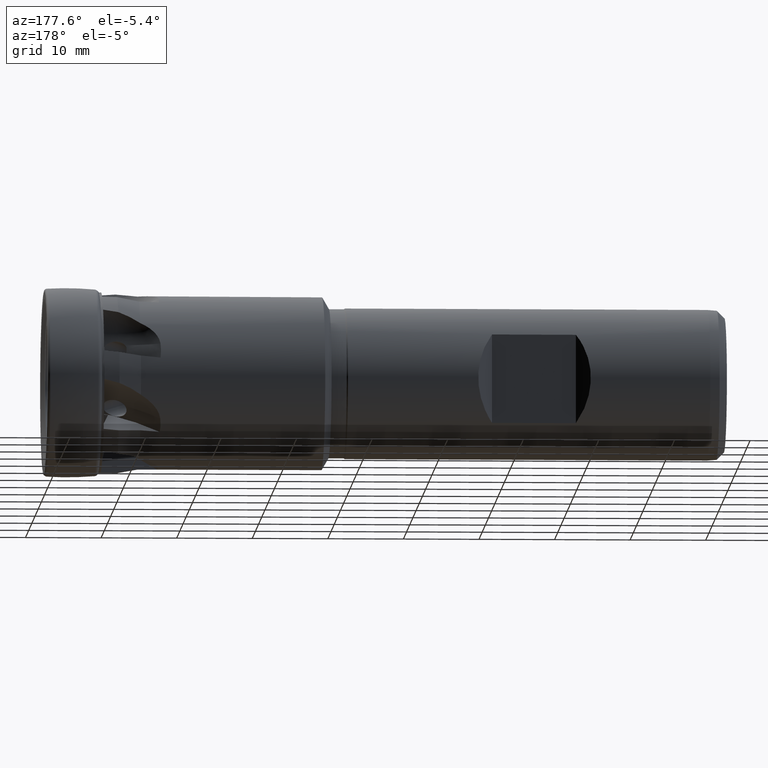
[diagram: clean part render]
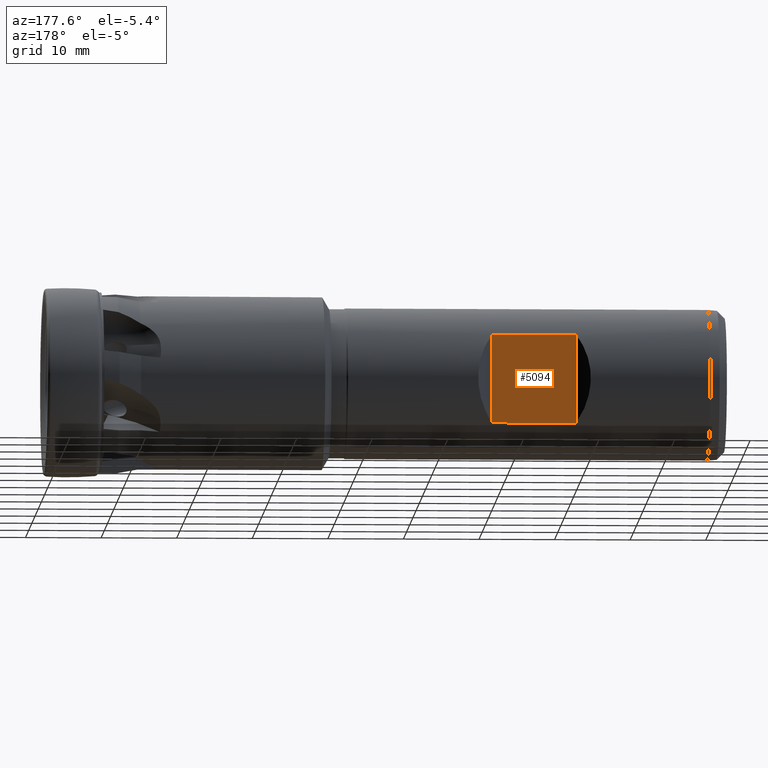
[diagram: same view with one face highlighted and labeled with its STEP entity id]
A machine part, auxiliary view. The second image highlights one B-rep face of the part: STEP entity #5094.
In plain terms, the highlighted planar face has unit normal (-0, -1, 0).
Its self-contained STEP definition (entity closure, byte-faithful):
#242 = CARTESIAN_POINT ( 'NONE',  ( -58.44999999999999600, 8.100000000000008500, 5.864298764558277800 ) ) ;
#290 = CARTESIAN_POINT ( 'NONE',  ( -69.54999999999999700, 8.099999999999999600, 5.864298764558285800 ) ) ;
#328 = CARTESIAN_POINT ( 'NONE',  ( -58.44999999999999600, 8.100000000000008500, -5.864298764558271600 ) ) ;
#680 = LINE ( 'NONE', #692, #3472 ) ;
#692 = CARTESIAN_POINT ( 'NONE',  ( 1.265879293280372100E-015, 8.099999999999999600, -5.864298764558285800 ) ) ;
#693 = DIRECTION ( 'NONE',  ( -1.000000000000000000, 0.0000000000000000000, 0.0000000000000000000 ) ) ;
#1317 = CARTESIAN_POINT ( 'NONE',  ( -69.54999999999999700, 8.099999999999999600, -5.864298764558285800 ) ) ;
#2463 = CARTESIAN_POINT ( 'NONE',  ( -69.54999999999999700, 8.100000000000010300, 23.14999999999999900 ) ) ;
#2466 = FACE_OUTER_BOUND ( 'NONE', #3906, .T. ) ;
#2467 = PLANE ( 'NONE',  #4646 ) ;
#2469 = DIRECTION ( 'NONE',  ( -1.562813942321447300E-016, -1.000000000000000000, 0.0000000000000000000 ) ) ;
#2470 = DIRECTION ( 'NONE',  ( 1.000000000000000000, -1.562813942321447300E-016, 0.0000000000000000000 ) ) ;
#2798 = CARTESIAN_POINT ( 'NONE',  ( -58.44999999999999600, 8.100000000000008500, 23.14999999999999900 ) ) ;
#2799 = LINE ( 'NONE', #2798, #4755 ) ;
#2831 = DIRECTION ( 'NONE',  ( -0.0000000000000000000, -0.0000000000000000000, -1.000000000000000000 ) ) ;
#2832 = LINE ( 'NONE', #2833, #4757 ) ;
#2833 = CARTESIAN_POINT ( 'NONE',  ( -69.54999999999999700, 8.100000000000010300, 23.14999999999999900 ) ) ;
#2834 = DIRECTION ( 'NONE',  ( -0.0000000000000000000, -0.0000000000000000000, -1.000000000000000000 ) ) ;
#3162 = ORIENTED_EDGE ( 'NONE', *, *, #4079, .T. ) ;
#3257 = ORIENTED_EDGE ( 'NONE', *, *, #6044, .F. ) ;
#3265 = ORIENTED_EDGE ( 'NONE', *, *, #3986, .T. ) ;
#3268 = ORIENTED_EDGE ( 'NONE', *, *, #6043, .T. ) ;
#3472 = VECTOR ( 'NONE', #693, 1000.000000000000000 ) ;
#3620 = VERTEX_POINT ( 'NONE', #1317 ) ;
#3717 = VERTEX_POINT ( 'NONE', #242 ) ;
#3768 = VERTEX_POINT ( 'NONE', #290 ) ;
#3807 = VERTEX_POINT ( 'NONE', #328 ) ;
#3906 = EDGE_LOOP ( 'NONE', ( #3268, #3265, #3257, #3162 ) ) ;
#3986 = EDGE_CURVE ( 'NONE', #3807, #3620, #680, .T. ) ;
#4079 = EDGE_CURVE ( 'NONE', #3768, #3717, #5645, .T. ) ;
#4646 = AXIS2_PLACEMENT_3D ( 'NONE', #2463, #2469, #2470 ) ;
#4755 = VECTOR ( 'NONE', #2831, 1000.000000000000000 ) ;
#4757 = VECTOR ( 'NONE', #2834, 1000.000000000000000 ) ;
#5094 = ADVANCED_FACE ( 'NONE', ( #2466 ), #2467, .F. ) ;
#5645 = LINE ( 'NONE', #5646, #6006 ) ;
#5646 = CARTESIAN_POINT ( 'NONE',  ( 1.265879293280372100E-015, 8.099999999999999600, 5.864298764558285800 ) ) ;
#5682 = DIRECTION ( 'NONE',  ( 1.000000000000000000, -0.0000000000000000000, -0.0000000000000000000 ) ) ;
#6006 = VECTOR ( 'NONE', #5682, 1000.000000000000000 ) ;
#6043 = EDGE_CURVE ( 'NONE', #3717, #3807, #2799, .T. ) ;
#6044 = EDGE_CURVE ( 'NONE', #3768, #3620, #2832, .T. ) ;